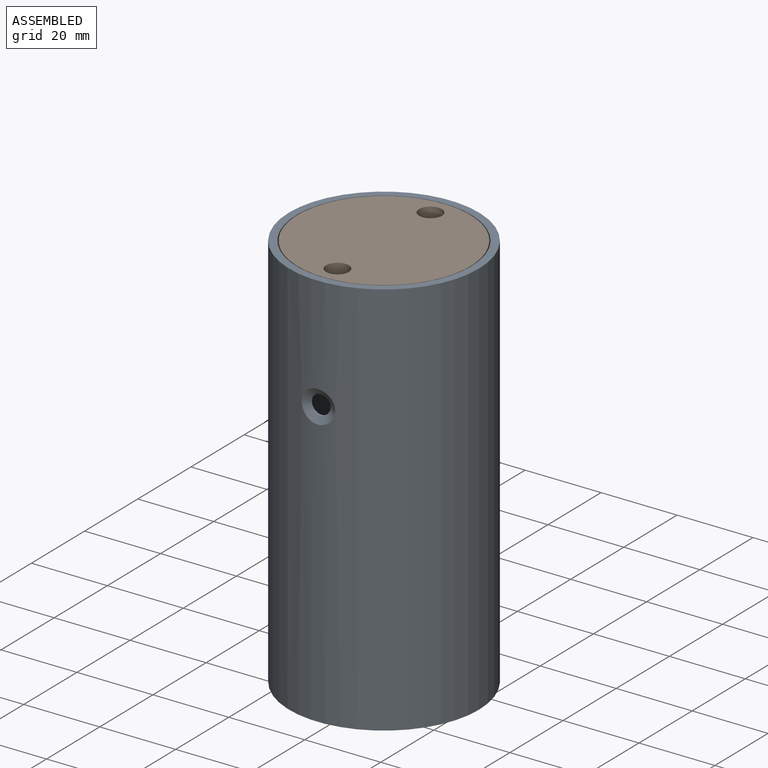
[diagram: assembled view]
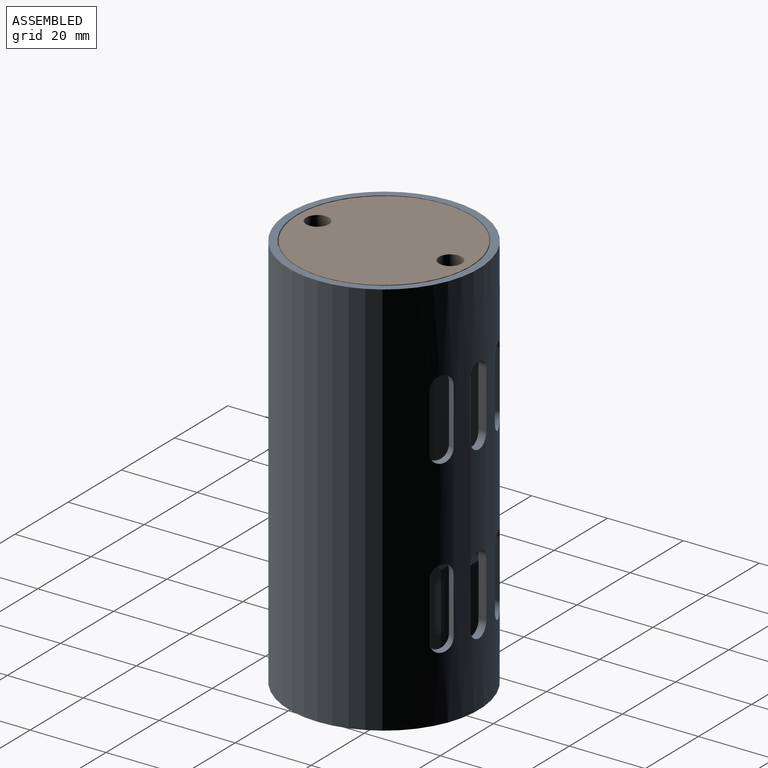
[diagram: assembled view, second angle]
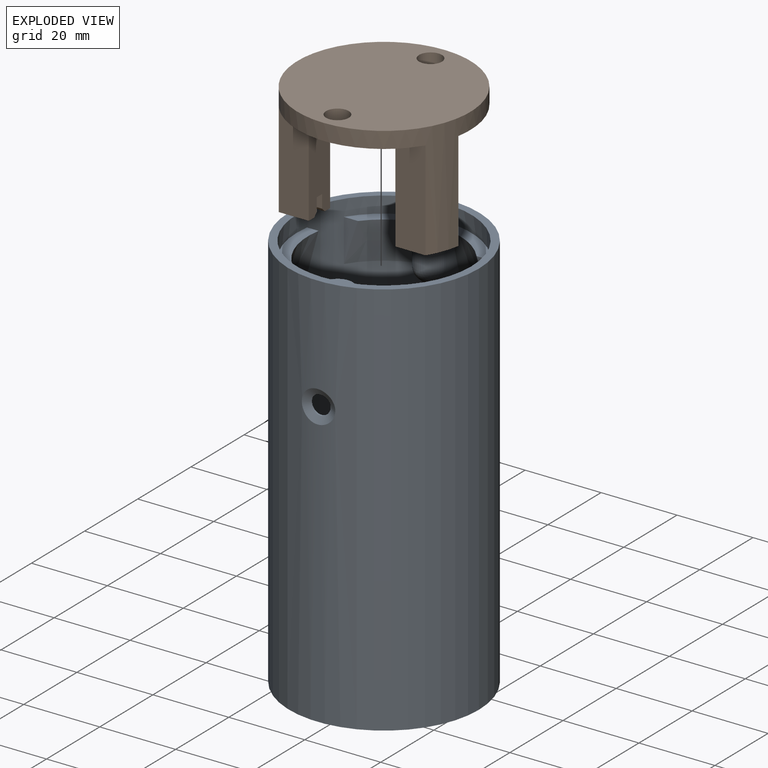
[diagram: exploded view]
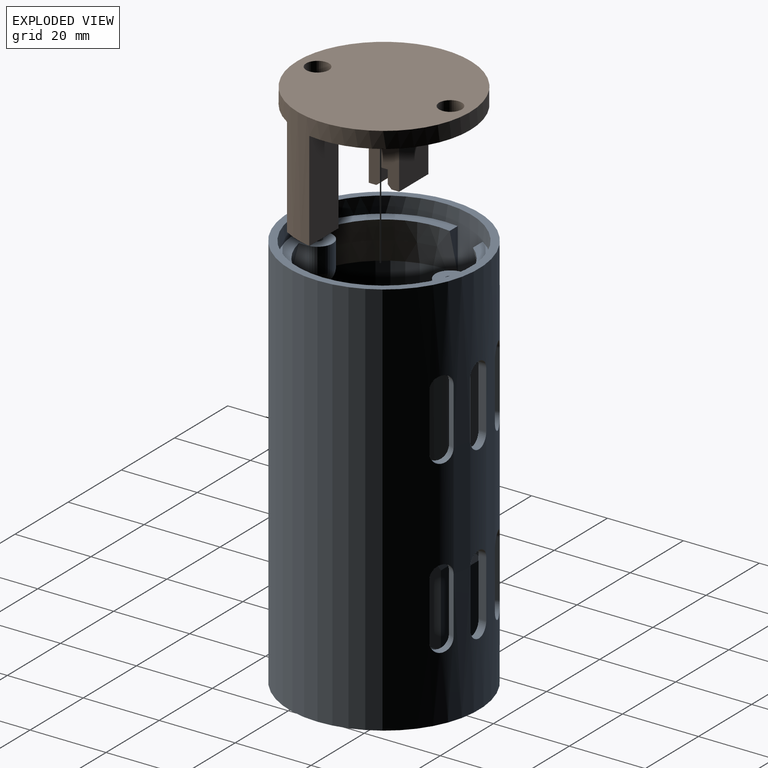
[diagram: exploded view, second angle]
ASSEMBLY  parts=2 mates=3
PART A: 83 faces, bbox 50.6x51.8x105.6 mm
  f0: cylinder r=23mm len=100mm, axis (0,0,-1), area 11833.7mm2, adj f2,f3,f4,f5,f6,f7,f8,f9
  f1: cylinder r=25mm len=105mm, axis (0,0,-1), area 15893.3mm2, adj f9,f10,f28,f53,f54,f55,f56,f57
  f2: cylinder r=4mm len=10.54mm, axis (0,-0.77,0.63), area 106.2mm2, adj f0,f44,f45,f47,f52,f53
  f3: cone r=23mm half-angle=15deg, axis (0,0,-1), area 189.2mm2, adj f0,f29,f33,f44
  f4: cone r=23mm half-angle=15deg, axis (0,0,-1), area 385.5mm2, adj f0,f6,f34,f41
  f5: plane 0.22x0.03mm, normal (0,0,-1), area 0mm2, adj f0,f38,f40
  f6: plane 46x26.5mm, normal (0,0,1), area 262.9mm2, adj f0,f4,f7,f31,f34,f41,f42,f48
  f7: cone r=23mm half-angle=15deg, axis (0,0,-1), area 385.5mm2, adj f0,f6,f31,f42
  f8: plane 46x46mm, normal (0,0,1), area 1519.6mm2, adj f0,f11,f12,f13,f14,f15,f16,f17
  f9: plane 50x50mm, normal (0,0,1), area 301.6mm2, adj f0,f1
  f10: plane 50x50mm, normal (0,0,-1), area 1963.5mm2, adj f1
  f11: plane 20x8.22mm, normal (0,1,0), area 164.4mm2, adj f0,f8,f17,f18
  f12: plane 20x11.25mm, normal (0,-1,0), area 225mm2, adj f0,f8,f13,f18
  f13: plane 20x3mm, normal (1,0,0), area 59.5mm2, adj f8,f12,f14,f18,f80
  f14: plane 19x4.5mm, normal (0,1,0), area 85.5mm2, adj f8,f13,f15,f80
  f15: plane 19x2mm, normal (1,0,0), area 38mm2, adj f8,f14,f16,f81
  f16: plane 19x4.5mm, normal (0,-1,0), area 85.5mm2, adj f8,f15,f17,f82
  f17: plane 20x3mm, normal (1,0,0), area 59.5mm2, adj f8,f11,f16,f18,f82
  f18: plane 11.25x8mm, normal (0,0,1), area 58.2mm2, adj f0,f11,f12,f13,f17,f80,f81,f82
  f19: plane 20x8.22mm, normal (0,1,0), area 164.4mm2, adj f0,f8,f25,f26
  f20: plane 20x11.25mm, normal (0,-1,0), area 225mm2, adj f0,f8,f21,f26
  f21: plane 20x3mm, normal (-1,0,0), area 59.5mm2, adj f8,f20,f22,f26,f79
  f22: plane 19x4.5mm, normal (0,1,0), area 85.5mm2, adj f8,f21,f23,f79
  f23: plane 19x2mm, normal (-1,0,0), area 38mm2, adj f8,f22,f24,f78
  f24: plane 19x4.5mm, normal (0,-1,0), area 85.5mm2, adj f8,f23,f25,f77
  f25: plane 20x3mm, normal (-1,0,0), area 59.5mm2, adj f8,f19,f24,f26,f77
  f26: plane 11.25x8mm, normal (0,0,1), area 58.2mm2, adj f0,f19,f20,f21,f25,f77,f78,f79
  f27: cylinder r=2.5mm len=5mm, axis (0,1,0), area 4.9mm2, adj f28,f39
  f28: bspline ~8.82x8.46mm, area 44.5mm2, adj f1,f27
  f29: plane 38.61x10.5mm, normal (0,0,1), area 161.7mm2, adj f0,f3,f30,f32,f33,f44,f45,f46
  f30: cone r=23mm half-angle=15deg, axis (0,0,-1), area 189.2mm2, adj f0,f29,f32,f45
  f31: plane 11.23x3.08mm, normal (0,1,0), area 17mm2, adj f0,f6,f7
  f32: plane 11.39x3.88mm, normal (0,-1,0), area 20.4mm2, adj f0,f29,f30
  f33: plane 11.39x3.88mm, normal (0,-1,0), area 20.4mm2, adj f0,f3,f29
  f34: plane 11.23x3.08mm, normal (0,1,0), area 17mm2, adj f0,f4,f6
  f35: plane 0.22x0.03mm, normal (0,0,-1), area 0mm2, adj f0,f36,f40
  f36: plane 10x0.73mm, normal (1,0,0), area 6.9mm2, adj f0,f35,f37,f39,f40
  f37: plane 6.5x0.73mm, normal (0,0,1), area 3.7mm2, adj f0,f36,f38,f39
  f38: plane 10x0.73mm, normal (-1,0,0), area 6.9mm2, adj f0,f5,f37,f39,f40
  f39: plane 8.79x6.5mm, normal (0,1,0), area 37.5mm2, adj f27,f36,f37,f38,f40
  f40: plane 6.5x1.21mm, normal (0,0.87,-0.5), area 7.5mm2, adj f0,f5,f35,f36,f38,f39
  f41: plane 12.91x5.19mm, normal (-1,0,0), area 33mm2, adj f0,f4,f6,f48,f50
  f42: plane 12.91x5.19mm, normal (1,0,0), area 33mm2, adj f0,f6,f7,f48,f50
  f43: plane 3.8x1.06mm, normal (0,0,-1), area 1.1mm2, adj f0,f50
  f44: plane 12.36x5.19mm, normal (-1,0,0), area 35.5mm2, adj f0,f2,f3,f29,f46
  f45: plane 12.36x5.19mm, normal (1,0,0), area 35.5mm2, adj f0,f2,f29,f30,f46
  f46: cylinder r=4mm len=8.1mm, axis (0,0,1), area 101.8mm2, adj f29,f44,f45,f47
  f47: sphere r=4mm, area 28.3mm2, adj f2,f46
  f48: cylinder r=4mm len=8mm, axis (0,0,1), area 82.6mm2, adj f6,f41,f42,f49
  f49: sphere r=4mm, area 21.9mm2, adj f48,f50
  f50: cylinder r=4mm len=12.65mm, axis (0,-0.63,-0.77), area 133.6mm2, adj f0,f41,f42,f43,f49,f51
  f51: cylinder r=1.25mm len=14.42mm, axis (0,0,1), area 100mm2, adj f6,f50
  f52: cylinder r=1.25mm len=14.3mm, axis (0,0,1), area 103.2mm2, adj f2,f29
  f53: cylinder r=3mm len=6mm, axis (0,-1,0), area 18mm2, adj f0,f1,f2,f54,f55
  f54: plane 15x2.02mm, normal (1,0,0), area 30.2mm2, adj f0,f1,f53,f56
  f55: plane 15x2.02mm, normal (-1,0,0), area 30.2mm2, adj f0,f1,f53,f56
  f56: cylinder r=3mm len=6mm, axis (0,-1,0), area 19mm2, adj f0,f1,f54,f55
  f57: plane 15x1.83mm, normal (0.91,-0.42,0), area 30.2mm2, adj f0,f1,f59,f60
  f58: plane 15x1.83mm, normal (-0.91,0.42,0), area 30.2mm2, adj f0,f1,f59,f60
  f59: cylinder r=3mm len=6.29mm, axis (-0.42,-0.91,0), area 19mm2, adj f0,f1,f57,f58
  f60: cylinder r=3mm len=6.29mm, axis (-0.42,-0.91,0), area 19mm2, adj f0,f1,f57,f58
  f61: cylinder r=3mm len=6.29mm, axis (0.42,-0.91,0), area 19mm2, adj f0,f1,f63,f64
  f62: cylinder r=3mm len=6.29mm, axis (0.42,-0.91,0), area 19mm2, adj f0,f1,f63,f64
  f63: plane 15x1.83mm, normal (-0.91,-0.42,0), area 30.2mm2, adj f0,f1,f61,f62
  f64: plane 15x1.83mm, normal (0.91,0.42,0), area 30.2mm2, adj f0,f1,f61,f62
  f65: plane 15x1.83mm, normal (0.91,0.42,0), area 30.2mm2, adj f0,f1,f67,f68
  f66: plane 15x1.83mm, normal (-0.91,-0.42,0), area 30.2mm2, adj f0,f1,f67,f68
  f67: cylinder r=3mm len=6.29mm, axis (0.42,-0.91,0), area 19mm2, adj f0,f1,f65,f66
  f68: cylinder r=3mm len=6.29mm, axis (0.42,-0.91,0), area 19mm2, adj f0,f1,f65,f66
  f69: plane 15x1.83mm, normal (0.91,-0.42,0), area 30.2mm2, adj f0,f1,f71,f72
  f70: plane 15x1.83mm, normal (-0.91,0.42,0), area 30.2mm2, adj f0,f1,f71,f72
  f71: cylinder r=3mm len=6.29mm, axis (-0.42,-0.91,0), area 19mm2, adj f0,f1,f69,f70
  f72: cylinder r=3mm len=6.29mm, axis (-0.42,-0.91,0), area 19mm2, adj f0,f1,f69,f70
  f73: cylinder r=3mm len=6mm, axis (0,-1,0), area 19mm2, adj f0,f1,f75,f76
  f74: cylinder r=3mm len=6mm, axis (0,-1,0), area 19mm2, adj f0,f1,f75,f76
  f75: plane 15x2.02mm, normal (-1,0,0), area 30.2mm2, adj f0,f1,f73,f74
  f76: plane 15x2.02mm, normal (1,0,0), area 30.2mm2, adj f0,f1,f73,f74
  f77: plane 5.5x1mm, normal (0,-0.71,0.71), area 7.1mm2, adj f24,f25,f26,f78
  f78: plane 4x1mm, normal (-0.71,0,0.71), area 4.2mm2, adj f23,f26,f77,f79
  f79: plane 5.5x1mm, normal (0,0.71,0.71), area 7.1mm2, adj f21,f22,f26,f78
  f80: plane 5.5x1mm, normal (0,0.71,0.71), area 7.1mm2, adj f13,f14,f18,f81
  f81: plane 4x1mm, normal (0.71,0,0.71), area 4.2mm2, adj f15,f18,f80,f82
  f82: plane 5.5x1mm, normal (0,-0.71,0.71), area 7.1mm2, adj f16,f17,f18,f81
PART B: 31 faces, bbox 45.5x45.5x30.5 mm
  f0: plane 26.2x8mm, normal (0,-1,0), area 199.6mm2, adj f1,f4,f7,f8,f15,f16,f17,f22
  f1: plane 11x8mm, normal (0,0,1), area 56mm2, adj f0,f5,f7,f8,f22,f23,f24
  f2: plane 26.2x8mm, normal (0,1,0), area 199.6mm2, adj f3,f4,f9,f10,f12,f13,f14,f19
  f3: plane 11x8mm, normal (0,0,1), area 56mm2, adj f2,f5,f9,f10,f19,f20,f21
  f4: plane 45.5x45.5mm, normal (0,0,1), area 1451.8mm2, adj f0,f2,f5,f7,f8,f9,f10,f29
  f5: cylinder r=22.75mm len=45.5mm, axis (0,0,-1), area 1066.3mm2, adj f1,f3,f4,f6,f7,f8,f9,f10
  f6: plane 45.5x45.5mm, normal (0,0,-1), area 1569.4mm2, adj f5,f25,f27
  f7: plane 26.2x11mm, normal (-1,0,0), area 288.1mm2, adj f0,f1,f4,f5
  f8: plane 26.2x7.93mm, normal (1,0,0), area 207.7mm2, adj f0,f1,f4,f5
  f9: plane 26.2x11mm, normal (-1,0,0), area 288.1mm2, adj f2,f3,f4,f5
  f10: plane 26.2x7.93mm, normal (1,0,0), area 207.7mm2, adj f2,f3,f4,f5
  f11: plane 3.5x2mm, normal (0,1,0), area 7mm2, adj f12,f13,f14,f20
  f12: plane 4.5x2mm, normal (0,0,1), area 9mm2, adj f2,f11,f13,f14
  f13: plane 4.5x3.5mm, normal (1,0,0), area 15.7mm2, adj f2,f11,f12,f21
  f14: plane 4.5x3.5mm, normal (-1,0,0), area 15.7mm2, adj f2,f11,f12,f19
  f15: plane 4.5x3.5mm, normal (-1,0,0), area 15.7mm2, adj f0,f17,f18,f24
  f16: plane 4.5x3.5mm, normal (1,0,0), area 15.7mm2, adj f0,f17,f18,f22
  f17: plane 4.5x2mm, normal (0,0,1), area 9mm2, adj f0,f15,f16,f18
  f18: plane 3.5x2mm, normal (0,-1,0), area 7mm2, adj f15,f16,f17,f23
  f19: plane 5.5x1mm, normal (-0.71,0,0.71), area 7.1mm2, adj f2,f3,f14,f20
  f20: plane 4x1mm, normal (0,0.71,0.71), area 4.2mm2, adj f3,f11,f19,f21
  f21: plane 5.5x1mm, normal (0.71,0,0.71), area 7.1mm2, adj f2,f3,f13,f20
  f22: plane 5.5x1mm, normal (0.71,0,0.71), area 7.1mm2, adj f0,f1,f16,f23
  f23: plane 4x1mm, normal (0,-0.71,0.71), area 4.2mm2, adj f1,f18,f22,f24
  f24: plane 5.5x1mm, normal (-0.71,0,0.71), area 7.1mm2, adj f0,f1,f15,f23
  f25: cylinder r=3mm len=6mm, axis (0,0,-1), area 66mm2, adj f6,f26
  f26: plane 6x6mm, normal (0,0,-1), area 19.2mm2, adj f25,f30
  f27: cylinder r=3mm len=6mm, axis (0,0,-1), area 66mm2, adj f6,f28
  f28: plane 6x6mm, normal (0,0,-1), area 19.2mm2, adj f27,f29
  f29: cylinder r=1.7mm len=3.4mm, axis (0,0,-1), area 8.5mm2, adj f4,f28
  f30: cylinder r=1.7mm len=3.4mm, axis (0,0,-1), area 8.5mm2, adj f4,f26
PLACE A t=(-60.65,-89.26,-33.76)mm
PLACE B rot(axis=(0.71,-0.71,0),180deg) t=(-60.65,-89.26,66.24)mm
MATE planar B.f4 <-> A.f46  axis (0,0,-1) through (-60.65,-88.42,61.94)mm
MATE cylindrical B.f27 <-> A.f46  axis (0,0,1) through (-60.65,-71.76,66.24)mm
MATE cylindrical B.f25 <-> A.f48  axis (0,0,1) through (-60.65,-106.76,66.24)mm
